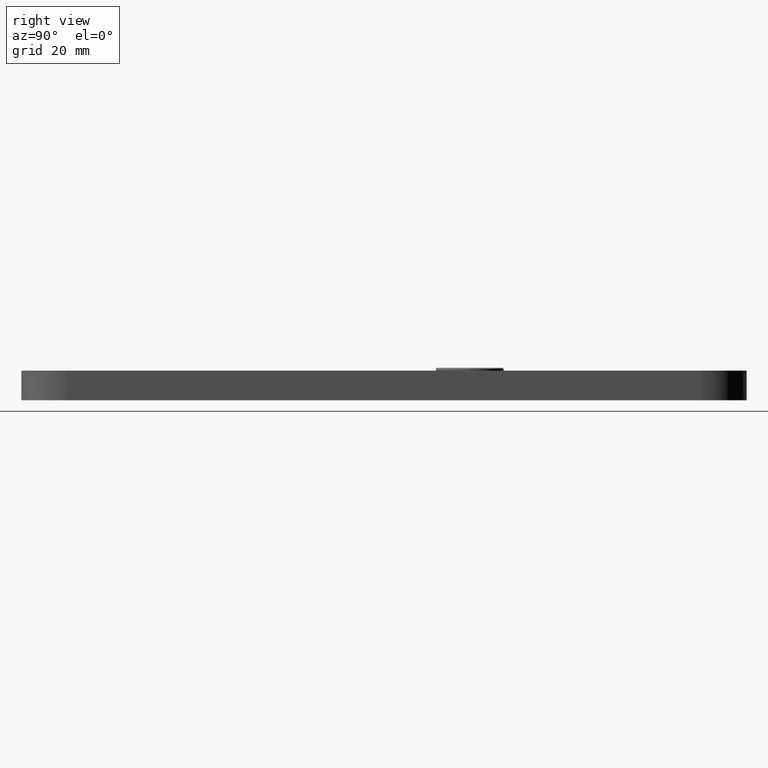
[diagram: clean part render]
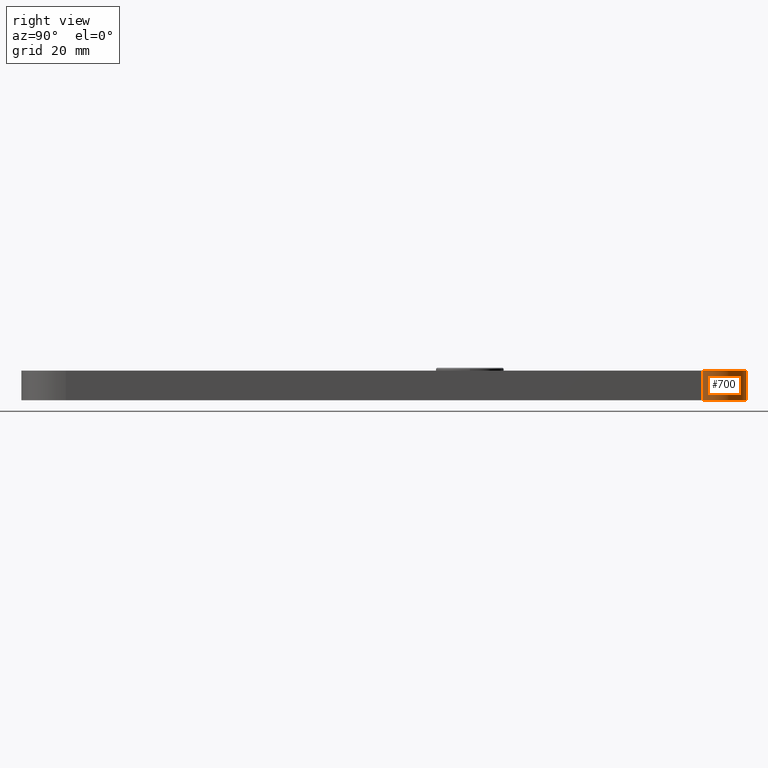
[diagram: same view with one face highlighted and labeled with its STEP entity id]
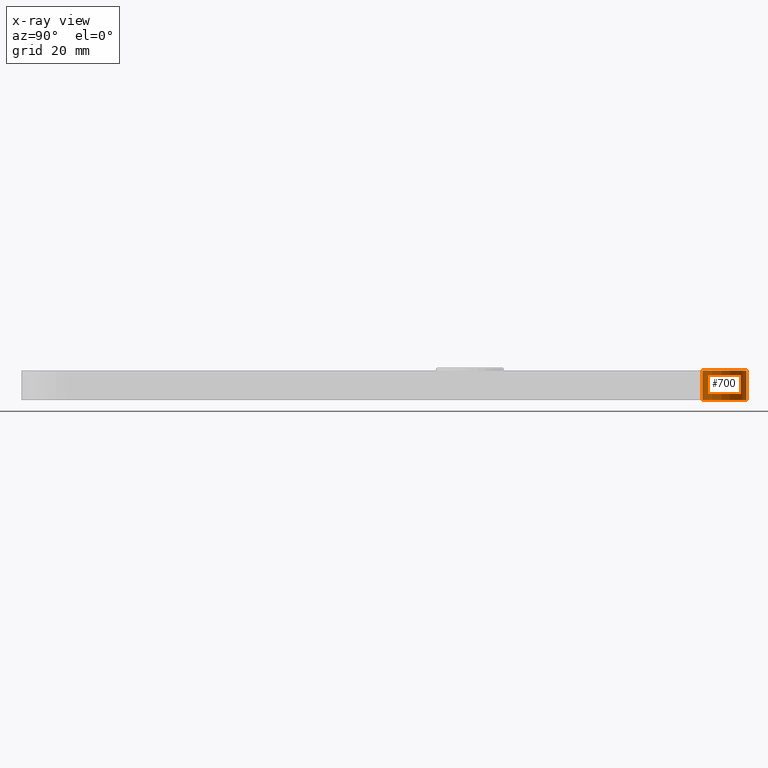
[diagram: x-ray of the same camera — body ghosted, the highlighted face saturated]
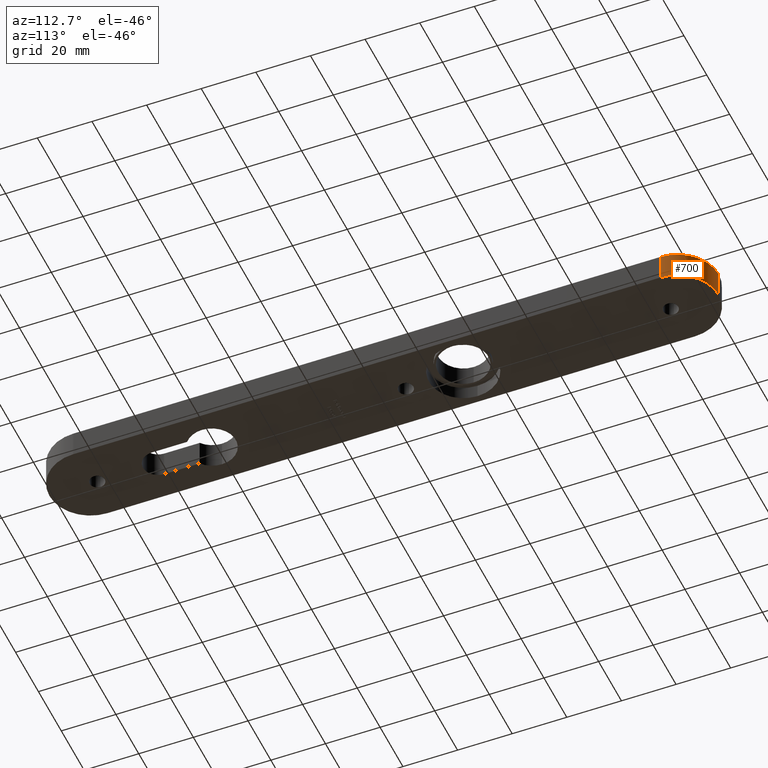
[diagram: same view with one face highlighted and labeled with its STEP entity id]
A machine part, right view. The second image highlights one B-rep face of the part: STEP entity #700.
The next image is the same camera in x-ray: the body ghosted, the highlighted face saturated — about 0% of this face is hidden behind the body in this view.
A second angle (auxiliary view) of the same face is appended — the face is thin or edge-on in the first view.
In plain terms, the highlighted cylindrical surface (partial cylindrical patch) has radius 15 mm, axis along (0, 0, -1).
Its self-contained STEP definition (entity closure, byte-faithful):
#364 = CARTESIAN_POINT ( 'NONE',  ( -2.602085213965210642E-14, 122.5000000000000000, 10.00000000000000000 ) ) ;
#700 = ADVANCED_FACE ( 'NONE', ( #6267 ), #9427, .T. ) ;
#727 = AXIS2_PLACEMENT_3D ( 'NONE', #7099, #3476, #8781 ) ;
#930 = CIRCLE ( 'NONE', #9319, 15.00000000000000000 ) ;
#1086 = CARTESIAN_POINT ( 'NONE',  ( 15.00000000000002487, 107.5000000000000000, 10.00000000000000000 ) ) ;
#1209 = DIRECTION ( 'NONE',  ( -1.000000000000000000, 0.000000000000000000, 0.000000000000000000 ) ) ;
#1652 = CIRCLE ( 'NONE', #727, 15.00000000000000000 ) ;
#1939 = EDGE_CURVE ( 'NONE', #6803, #7260, #1652, .T. ) ;
#2428 = DIRECTION ( 'NONE',  ( -1.000000000000000000, 0.000000000000000000, 0.000000000000000000 ) ) ;
#2518 = DIRECTION ( 'NONE',  ( -0.000000000000000000, -0.000000000000000000, 1.000000000000000000 ) ) ;
#2769 = CARTESIAN_POINT ( 'NONE',  ( 15.00000000000002487, 107.5000000000000000, 0.000000000000000000 ) ) ;
#2986 = EDGE_CURVE ( 'NONE', #11141, #7260, #8869, .T. ) ;
#3002 = DIRECTION ( 'NONE',  ( -0.000000000000000000, -0.000000000000000000, -1.000000000000000000 ) ) ;
#3100 = CARTESIAN_POINT ( 'NONE',  ( 2.602085213965210642E-14, 107.5000000000000000, 0.000000000000000000 ) ) ;
#3253 = DIRECTION ( 'NONE',  ( 0.000000000000000000, 0.000000000000000000, -1.000000000000000000 ) ) ;
#3476 = DIRECTION ( 'NONE',  ( 0.000000000000000000, 0.000000000000000000, 1.000000000000000000 ) ) ;
#3831 = EDGE_CURVE ( 'NONE', #3843, #6803, #8310, .T. ) ;
#3843 = VERTEX_POINT ( 'NONE', #2769 ) ;
#4358 = CARTESIAN_POINT ( 'NONE',  ( 15.00000000000002487, 107.5000000000000000, 10.00000000000000000 ) ) ;
#4538 = AXIS2_PLACEMENT_3D ( 'NONE', #7780, #3253, #2428 ) ;
#4700 = VECTOR ( 'NONE', #2518, 1000.000000000000000 ) ;
#4877 = ORIENTED_EDGE ( 'NONE', *, *, #3831, .F. ) ;
#5168 = EDGE_LOOP ( 'NONE', ( #8961, #4877, #7431, #6789 ) ) ;
#5548 = VECTOR ( 'NONE', #10398, 1000.000000000000000 ) ;
#6041 = CARTESIAN_POINT ( 'NONE',  ( -2.602085213965210642E-14, 122.5000000000000000, 10.00000000000000000 ) ) ;
#6267 = FACE_OUTER_BOUND ( 'NONE', #5168, .T. ) ;
#6789 = ORIENTED_EDGE ( 'NONE', *, *, #2986, .T. ) ;
#6803 = VERTEX_POINT ( 'NONE', #1086 ) ;
#7099 = CARTESIAN_POINT ( 'NONE',  ( 2.602085213965210642E-14, 107.5000000000000000, 10.00000000000000000 ) ) ;
#7260 = VERTEX_POINT ( 'NONE', #364 ) ;
#7431 = ORIENTED_EDGE ( 'NONE', *, *, #9298, .F. ) ;
#7780 = CARTESIAN_POINT ( 'NONE',  ( 2.602085213965210642E-14, 107.5000000000000000, 10.00000000000000000 ) ) ;
#8310 = LINE ( 'NONE', #4358, #4700 ) ;
#8781 = DIRECTION ( 'NONE',  ( -1.000000000000000000, 0.000000000000000000, 0.000000000000000000 ) ) ;
#8869 = LINE ( 'NONE', #6041, #5548 ) ;
#8961 = ORIENTED_EDGE ( 'NONE', *, *, #1939, .F. ) ;
#9298 = EDGE_CURVE ( 'NONE', #11141, #3843, #930, .T. ) ;
#9319 = AXIS2_PLACEMENT_3D ( 'NONE', #3100, #3002, #1209 ) ;
#9427 = CYLINDRICAL_SURFACE ( 'NONE', #4538, 15.00000000000000000 ) ;
#10398 = DIRECTION ( 'NONE',  ( -0.000000000000000000, -0.000000000000000000, 1.000000000000000000 ) ) ;
#11141 = VERTEX_POINT ( 'NONE', #11158 ) ;
#11158 = CARTESIAN_POINT ( 'NONE',  ( -2.602085213965210642E-14, 122.5000000000000000, 0.000000000000000000 ) ) ;